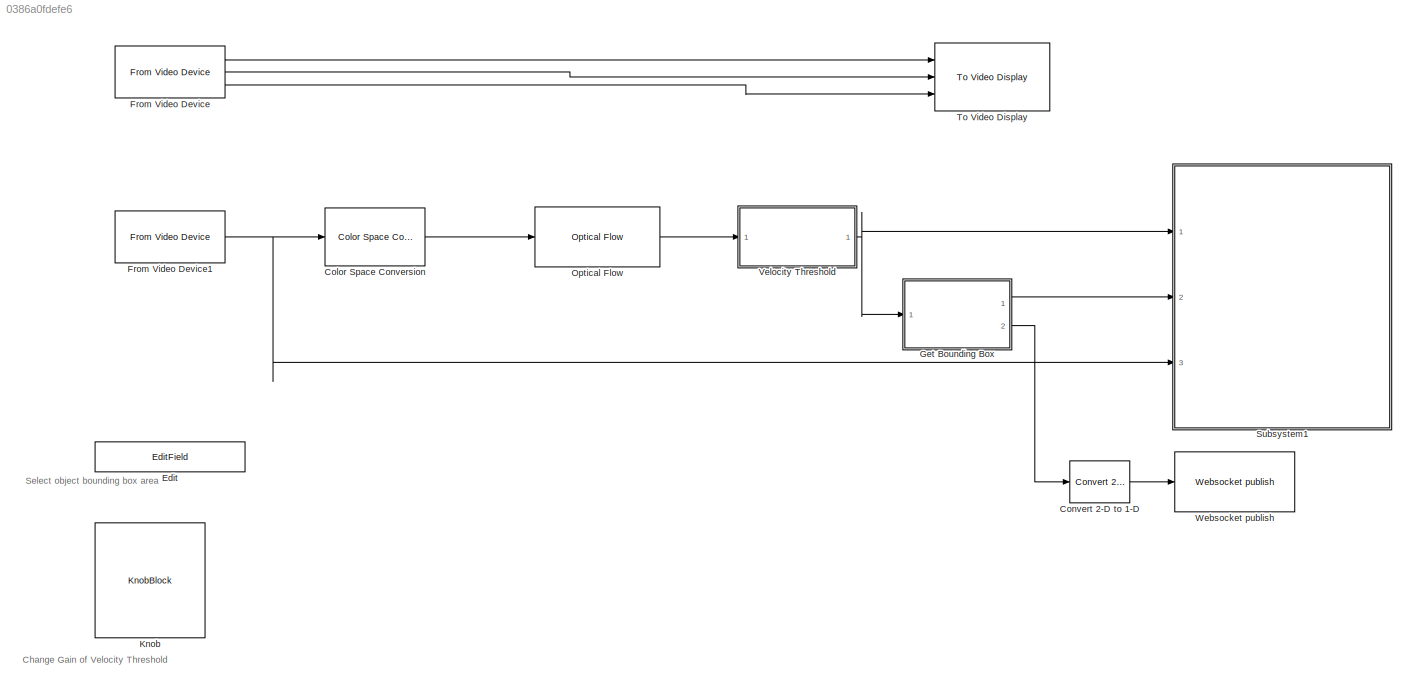
MODEL slx_0386a0fdefe6
KIND model
CONFIG AbsTol = auto
CONFIG EnableMultiTasking = off
CONFIG FixedStep = auto
CONFIG MaxStep = auto
CONFIG MinStep = auto
CONFIG RelTol = 1e-3
CONFIG SampleTimeConstraint = Unconstrained
CONFIG Solver = VariableStepAuto
CONFIG SolverName = VariableStepAuto
CONFIG StartTime = 0.0
CONFIG StopTime = 10
WORKSPACE source: mxarray member
WORKSPACE BBox_Area1 = 5
BLOCK [Reference] Color Space Conversion  REF=visionconversions/Color Space
 Conversion
  Ports = [1, 1]
  SourceBlock = visionconversions/Color Space\n Conversion
  SourceProductBaseCode = VP
  SourceProductName = Computer Vision Toolbox
  SourceType = Color Space Conversion
BLOCK [Reference] Convert 2-D to 1-D  REF=dspsigattribs/Convert 2-D to 1-D
  Ports = [1, 1]
  SourceBlock = dspsigattribs/Convert 2-D to 1-D
  SourceProductBaseCode = DS
  SourceProductName = DSP System Toolbox
  SourceType = Convert 2-D to 1-D
BLOCK [EditField] Edit
  Alignment = Center
  LabelPosition = Bottom
  ShowInitialText = on
BLOCK [Reference] From Video Device  REF=imaqlib/From Video Device
  Commented = on
  Ports = [0, 3]
  SourceBlock = imaqlib/From Video Device
  SourceProductBaseCode = IA
  SourceProductName = Image Acquisition Toolbox
  SourceType = From Video Device
  UserDataPersistent = on
BLOCK [Reference] From Video Device1  REF=imaqlib/From Video Device
  Ports = [0, 1]
  SourceBlock = imaqlib/From Video Device
  SourceProductBaseCode = IA
  SourceProductName = Image Acquisition Toolbox
  SourceType = From Video Device
  UserDataPersistent = on
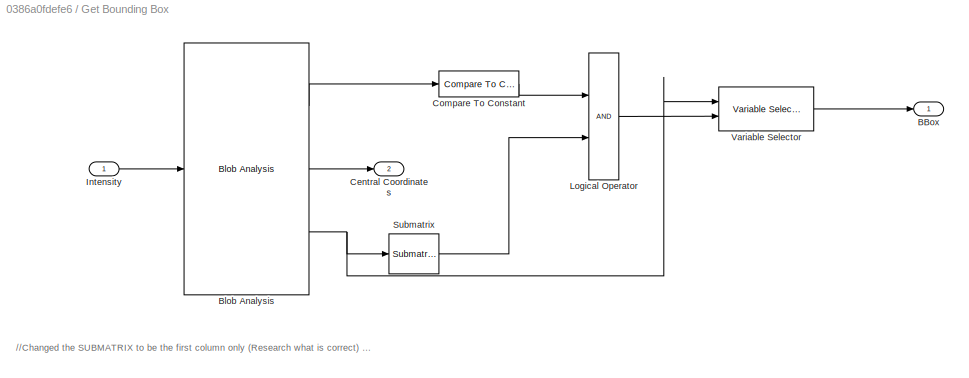
BLOCK [SubSystem] Get Bounding Box
  Ports = [1, 2]
  RequestExecContextInheritance = off
BLOCK [Outport] Get Bounding Box/BBox
  IconDisplay = Port number
BLOCK [Reference] Get Bounding Box/Blob Analysis  REF=visionstatistics/Blob Analysis
  Ports = [1, 3]
  SourceBlock = visionstatistics/Blob Analysis
  SourceProductBaseCode = VP
  SourceProductName = Computer Vision Toolbox
  SourceType = Blob Analysis
  Tag = vipblks_row_conv
BLOCK [Outport] Get Bounding Box/Central Coordinates
  IconDisplay = Port number
  Port = 2
BLOCK [Reference] Get Bounding Box/Compare To Constant  REF=simulink/Logic and Bit
Operations/Compare
To Constant
  Ports = [1, 1]
  SourceBlock = simulink/Logic and Bit\nOperations/Compare\nTo Constant
  SourceProductBaseCode = SL
  SourceProductName = Simulink
  SourceType = Compare To Constant
BLOCK [Inport] Get Bounding Box/Intensity
  IconDisplay = Port number
BLOCK [Logic] Get Bounding Box/Logical Operator
  AllPortsSameDT = off
  OutDataTypeStr = boolean
  Ports = [2, 1]
BLOCK [Reference] Get Bounding Box/Submatrix  REF=dspmtrx3/Submatrix
  Ports = [1, 1]
  SourceBlock = dspmtrx3/Submatrix
  SourceProductBaseCode = DS
  SourceProductName = DSP System Toolbox
  SourceType = Submatrix
BLOCK [Reference] Get Bounding Box/Variable Selector  REF=dspindex/Variable
Selector
  Ports = [2, 1]
  SourceBlock = dspindex/Variable\nSelector
  SourceProductBaseCode = DS
  SourceProductName = DSP System Toolbox
  SourceType = Variable Selector
BLOCK [KnobBlock] Knob
  ScaleMax = 10
  ScaleMin = 1
BLOCK [Reference] Optical Flow  REF=visionanalysis/Optical Flow
  Ports = [1, 1]
  SourceBlock = visionanalysis/Optical Flow
  SourceProductBaseCode = VP
  SourceProductName = Computer Vision Toolbox
  SourceType = Optical Flow
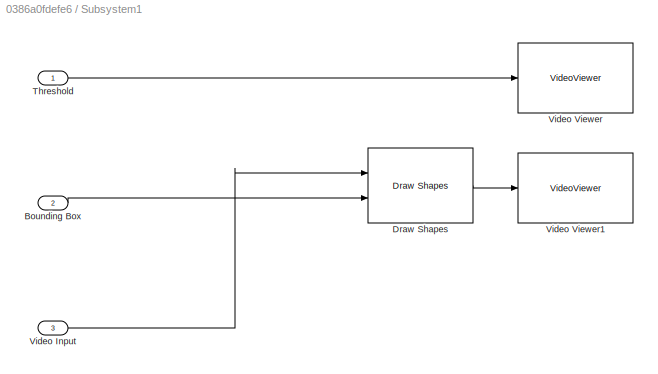
BLOCK [SubSystem] Subsystem1
  Ports = [3]
  RequestExecContextInheritance = off
BLOCK [Inport] Subsystem1/Bounding Box
  IconDisplay = Port number
  Port = 2
BLOCK [Reference] Subsystem1/Draw Shapes  REF=visiontextngfix/Draw Shapes
  Ports = [2, 1]
  SourceBlock = visiontextngfix/Draw Shapes
  SourceProductBaseCode = VP
  SourceProductName = Computer Vision Toolbox
  SourceType = Draw Shapes
BLOCK [Inport] Subsystem1/Threshold
  IconDisplay = Port number
BLOCK [Inport] Subsystem1/Video Input
  IconDisplay = Port number
  Port = 3
BLOCK [VideoViewer] Subsystem1/Video Viewer
  FigPos = [962 1037 958 409]
  Ports = [1]
  ScopeSpecificationString = vipscopes.VideoViewerScopeCfg('CurrentConfiguration', extmgr.ConfigurationSet(extmgr.Configuration('Core','General UI',true),extmgr.Configuration('Core','Source UI',true),extmgr.Configuration('Sources','WiredSimulink',true),extmgr.Configuration('Visuals','Video',true),extmgr.Configuration('Tools','Image Navigation Tools',true),extmgr.Configuration('Tools','Image Tool',true),extmgr.Configuration('T...<+100ch>
BLOCK [VideoViewer] Subsystem1/Video Viewer1
  FigPos = [2 517 958 409]
  Ports = [1]
  ScopeSpecificationString = vipscopes.VideoViewerScopeCfg('CurrentConfiguration', extmgr.ConfigurationSet(extmgr.Configuration('Core','General UI',true),extmgr.Configuration('Core','Source UI',true),extmgr.Configuration('Sources','WiredSimulink',true),extmgr.Configuration('Visuals','Video',true),extmgr.Configuration('Tools','Image Navigation Tools',true),extmgr.Configuration('Tools','Image Tool',true),extmgr.Configuration('T...<+99ch>
BLOCK [Reference] To Video Display  REF=visionsinks/To Video Display
  Commented = on
  Ports = [3]
  SourceBlock = visionsinks/To Video Display
  SourceProductBaseCode = VP
  SourceProductName = Computer Vision Toolbox
  SourceType = To Video Display
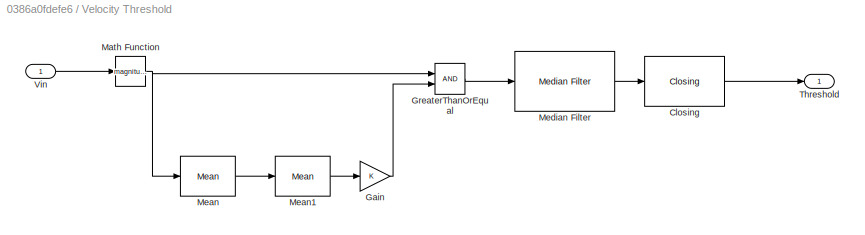
BLOCK [SubSystem] Velocity Threshold
  Ports = [1, 1]
  RequestExecContextInheritance = off
BLOCK [Reference] Velocity Threshold/Closing  REF=visionmorphops/Closing
  Ports = [1, 1]
  SourceBlock = visionmorphops/Closing
  SourceProductBaseCode = VP
  SourceProductName = Computer Vision Toolbox
  SourceType = Closing
BLOCK [Gain] Velocity Threshold/Gain
  OutDataTypeStr = Inherit: Inherit via internal rule
  ParamDataTypeStr = Inherit: Inherit via internal rule
  SaturateOnIntegerOverflow = off
BLOCK [RelationalOperator] Velocity Threshold/GreaterThanOrEqual
  InputSameDT = off
  OutDataTypeStr = boolean
  Ports = [2, 1]
  RndMeth = Simplest
BLOCK [Math] Velocity Threshold/Math Function
  Operator = magnitude^2
  Ports = [1, 1]
  SignedPower = off
BLOCK [Reference] Velocity Threshold/Mean  REF=dspstat3/Mean
  Ports = [1, 1]
  SourceBlock = dspstat3/Mean
  SourceProductBaseCode = DS
  SourceProductName = DSP System Toolbox
  SourceType = Mean
  UserDataPersistent = on
BLOCK [Reference] Velocity Threshold/Mean1  REF=dspstat3/Mean
  Ports = [1, 1]
  SourceBlock = dspstat3/Mean
  SourceProductBaseCode = DS
  SourceProductName = DSP System Toolbox
  SourceType = Mean
  UserDataPersistent = on
BLOCK [Reference] Velocity Threshold/Median Filter  REF=visionanalysis/Median Filter
  Ports = [1, 1]
  SourceBlock = visionanalysis/Median Filter
  SourceProductBaseCode = VP
  SourceProductName = Computer Vision Toolbox
  SourceType = Median Filter
BLOCK [Outport] Velocity Threshold/Threshold
  IconDisplay = Port number
BLOCK [Inport] Velocity Threshold/Vin
  IconDisplay = Port number
BLOCK [Reference] Websocket publish  REF=raspberrypilib/Websocket publish
  Ports = [1]
  SourceBlock = raspberrypilib/Websocket publish
  SourceProductBaseCode = RASPPI
  SourceProductName = Simulink Support Package for Raspberry Pi Hardware
  SourceType = codertarget.raspi.internal.webPublish
ANNOTATION (root): Change Gain of Velocity Threshold
ANNOTATION (root): Select object bounding box area
ANNOTATION Get Bounding Box: //Changed the SUBMATRIX to be the first column only (Research what is correct) ---> Default is all columns (50x4)//
LINE Color Space Conversion:1 -> Optical Flow:1
LINE Convert 2-D to 1-D:1 -> Websocket publish:1
NET From Video Device1:1 -> Color Space Conversion:1, Subsystem1:3
LINE From Video Device:1 -> To Video Display:1
LINE From Video Device:2 -> To Video Display:2
LINE From Video Device:3 -> To Video Display:3
LINE Get Bounding Box/Blob Analysis:1 -> Get Bounding Box/Compare To Constant:1
LINE Get Bounding Box/Blob Analysis:2 -> Get Bounding Box/Central Coordinates:1
NET Get Bounding Box/Blob Analysis:3 -> Get Bounding Box/Submatrix:1, Get Bounding Box/Variable Selector:1
LINE Get Bounding Box/Compare To Constant:1 -> Get Bounding Box/Logical Operator:1
LINE Get Bounding Box/Intensity:1 -> Get Bounding Box/Blob Analysis:1
LINE Get Bounding Box/Logical Operator:1 -> Get Bounding Box/Variable Selector:2
LINE Get Bounding Box/Submatrix:1 -> Get Bounding Box/Logical Operator:2
LINE Get Bounding Box/Variable Selector:1 -> Get Bounding Box/BBox:1
LINE Get Bounding Box:1 -> Subsystem1:2
LINE Get Bounding Box:2 -> Convert 2-D to 1-D:1
LINE Optical Flow:1 -> Velocity Threshold:1
LINE Subsystem1/Bounding Box:1 -> Subsystem1/Draw Shapes:2
LINE Subsystem1/Draw Shapes:1 -> Subsystem1/Video Viewer1:1
LINE Subsystem1/Threshold:1 -> Subsystem1/Video Viewer:1
LINE Subsystem1/Video Input:1 -> Subsystem1/Draw Shapes:1
LINE Velocity Threshold/Closing:1 -> Velocity Threshold/Threshold:1
LINE Velocity Threshold/Gain:1 -> Velocity Threshold/GreaterThanOrEqual:2
LINE Velocity Threshold/GreaterThanOrEqual:1 -> Velocity Threshold/Median Filter:1
NET Velocity Threshold/Math Function:1 -> Velocity Threshold/GreaterThanOrEqual:1, Velocity Threshold/Mean:1
LINE Velocity Threshold/Mean1:1 -> Velocity Threshold/Gain:1
LINE Velocity Threshold/Mean:1 -> Velocity Threshold/Mean1:1
LINE Velocity Threshold/Median Filter:1 -> Velocity Threshold/Closing:1
LINE Velocity Threshold/Vin:1 -> Velocity Threshold/Math Function:1
NET Velocity Threshold:1 -> Get Bounding Box:1, Subsystem1:1
note: NET lines group one-source signal fan-out (src -> all destinations, sorted); 1:1 wires keep LINE
